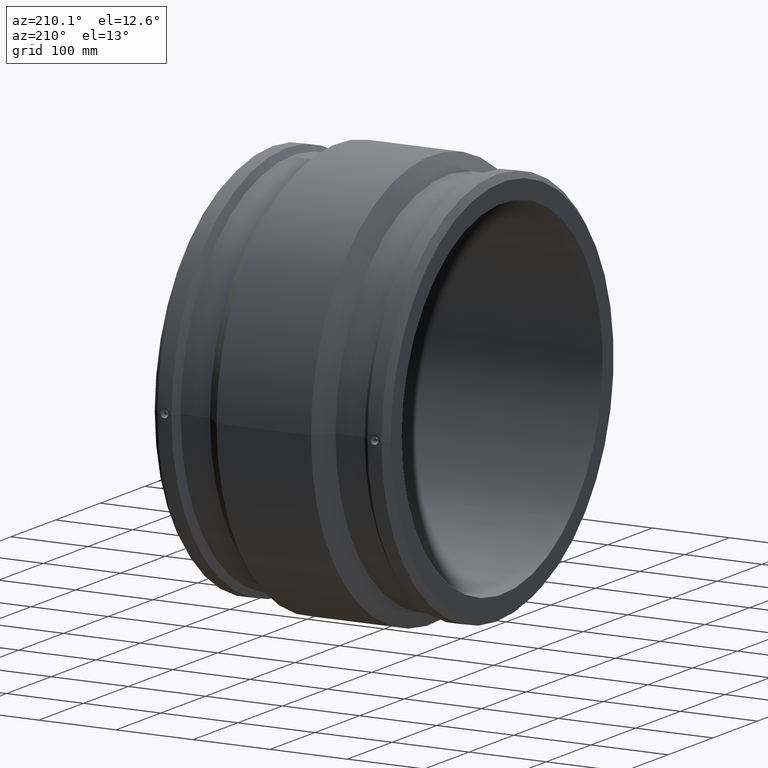
[diagram: clean part render]
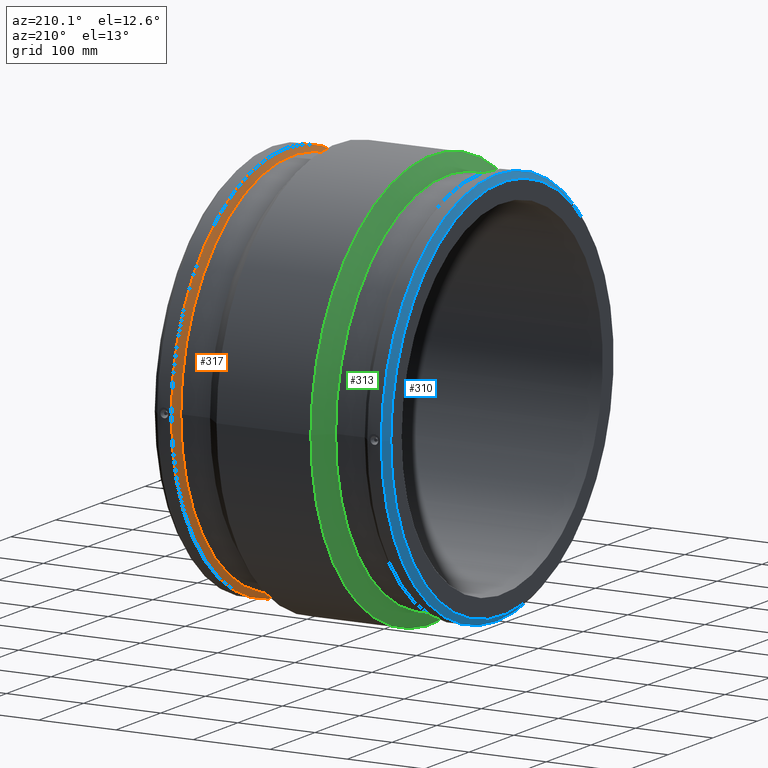
[diagram: same view with three faces highlighted in distinct colors, each labeled with its STEP entity id]
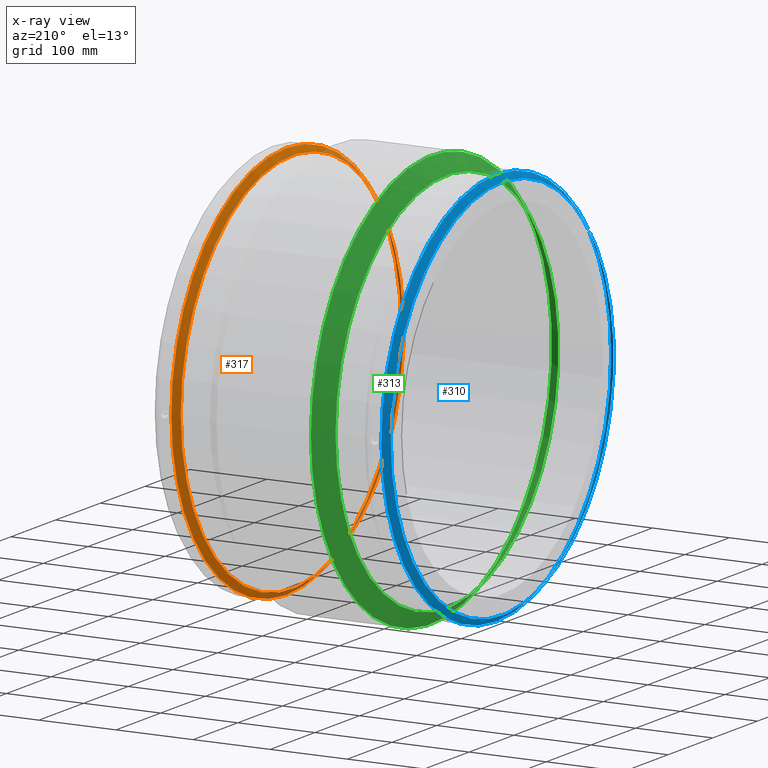
[diagram: x-ray of the same camera — body ghosted, the three highlighted faces saturated]
A machine part, auxiliary view with three faces highlighted in distinct colors.
The next image is the same camera in x-ray (body ghosted, the three faces saturated) — at least one of them is partly hidden behind the body in this view.
Their STEP definitions:

[orange] entity #317 — the highlighted conical surface has half-angle 45 deg.
#19=CONICAL_SURFACE('',#371,253.145,45.);
#45=FACE_BOUND('',#136,.T.);
#87=FACE_OUTER_BOUND('',#135,.T.);
#135=EDGE_LOOP('',(#277));
#136=EDGE_LOOP('',(#278));
#152=CIRCLE('',#343,257.);
#166=CIRCLE('',#370,249.29);
#178=VERTEX_POINT('',#554);
#192=VERTEX_POINT('',#632);
#206=EDGE_CURVE('',#178,#178,#152,.T.);
#222=EDGE_CURVE('',#192,#192,#166,.T.);
#277=ORIENTED_EDGE('',*,*,#222,.T.);
#278=ORIENTED_EDGE('',*,*,#206,.F.);
#317=ADVANCED_FACE('',(#87,#45),#19,.T.);
#343=AXIS2_PLACEMENT_3D('',#555,#419,#420);
#370=AXIS2_PLACEMENT_3D('',#633,#473,#474);
#371=AXIS2_PLACEMENT_3D('',#634,#475,#476);
#419=DIRECTION('center_axis',(1.,1.83697019872103E-16,0.));
#420=DIRECTION('ref_axis',(0.,0.,-1.));
#473=DIRECTION('center_axis',(1.,1.83697019872103E-16,0.));
#474=DIRECTION('ref_axis',(0.,0.,-1.));
#475=DIRECTION('center_axis',(1.,1.83697019872103E-16,0.));
#476=DIRECTION('ref_axis',(-1.97372982155583E-16,1.,0.));
#554=CARTESIAN_POINT('',(127.05,257.,0.));
#555=CARTESIAN_POINT('Origin',(127.05,5.14443504151824E-14,0.));
#632=CARTESIAN_POINT('',(119.34,249.29,0.));
#633=CARTESIAN_POINT('Origin',(119.34,5.00280463919685E-14,0.));
#634=CARTESIAN_POINT('Origin',(123.195,5.07361984035755E-14,0.));

[blue] entity #310 — the highlighted conical surface has half-angle 45 deg.
#15=CONICAL_SURFACE('',#358,253.145,45.0000000000001);
#38=FACE_BOUND('',#122,.T.);
#80=FACE_OUTER_BOUND('',#121,.T.);
#121=EDGE_LOOP('',(#263));
#122=EDGE_LOOP('',(#264));
#157=CIRCLE('',#353,257.);
#159=CIRCLE('',#356,249.29);
#183=VERTEX_POINT('',#606);
#185=VERTEX_POINT('',#611);
#213=EDGE_CURVE('',#183,#183,#157,.T.);
#215=EDGE_CURVE('',#185,#185,#159,.T.);
#263=ORIENTED_EDGE('',*,*,#215,.T.);
#264=ORIENTED_EDGE('',*,*,#213,.F.);
#310=ADVANCED_FACE('',(#80,#38),#15,.T.);
#353=AXIS2_PLACEMENT_3D('',#607,#439,#440);
#356=AXIS2_PLACEMENT_3D('',#612,#445,#446);
#358=AXIS2_PLACEMENT_3D('',#615,#449,#450);
#439=DIRECTION('center_axis',(1.,1.83697019872103E-16,0.));
#440=DIRECTION('ref_axis',(0.,0.,-1.));
#445=DIRECTION('center_axis',(1.,1.83697019872103E-16,0.));
#446=DIRECTION('ref_axis',(0.,0.,-1.));
#449=DIRECTION('center_axis',(1.,1.83697019872103E-16,0.));
#450=DIRECTION('ref_axis',(-1.97372982155583E-16,1.,0.));
#606=CARTESIAN_POINT('',(-145.29,257.,0.));
#607=CARTESIAN_POINT('Origin',(-145.29,1.41630402321392E-15,0.));
#611=CARTESIAN_POINT('',(-153.,249.29,0.));
#612=CARTESIAN_POINT('Origin',(-153.,9.86076131526265E-30,0.));
#615=CARTESIAN_POINT('Origin',(-149.145,7.08152011606965E-16,0.));

[green] entity #313 — the highlighted conical surface has half-angle 45 deg.
#17=CONICAL_SURFACE('',#363,259.395,45.);
#41=FACE_BOUND('',#128,.T.);
#83=FACE_OUTER_BOUND('',#127,.T.);
#127=EDGE_LOOP('',(#269));
#128=EDGE_LOOP('',(#270));
#162=CIRCLE('',#362,249.29);
#163=CIRCLE('',#364,269.5);
#188=VERTEX_POINT('',#620);
#189=VERTEX_POINT('',#623);
#218=EDGE_CURVE('',#188,#188,#162,.T.);
#219=EDGE_CURVE('',#189,#189,#163,.T.);
#269=ORIENTED_EDGE('',*,*,#218,.T.);
#270=ORIENTED_EDGE('',*,*,#219,.F.);
#313=ADVANCED_FACE('',(#83,#41),#17,.T.);
#362=AXIS2_PLACEMENT_3D('',#621,#457,#458);
#363=AXIS2_PLACEMENT_3D('',#622,#459,#460);
#364=AXIS2_PLACEMENT_3D('',#624,#461,#462);
#457=DIRECTION('center_axis',(1.,1.83697019872103E-16,0.));
#458=DIRECTION('ref_axis',(0.,0.,-1.));
#459=DIRECTION('center_axis',(1.,1.83697019872103E-16,0.));
#460=DIRECTION('ref_axis',(-1.97372982155583E-16,1.,0.));
#461=DIRECTION('center_axis',(1.,1.83697019872103E-16,0.));
#462=DIRECTION('ref_axis',(0.,0.,-1.));
#620=CARTESIAN_POINT('',(-81.4100000000001,249.29,0.));
#621=CARTESIAN_POINT('Origin',(-81.41,1.31508696526439E-14,0.));
#622=CARTESIAN_POINT('Origin',(-71.305,1.50071280384515E-14,0.));
#623=CARTESIAN_POINT('',(-61.2000000000001,269.5,0.));
#624=CARTESIAN_POINT('Origin',(-61.2,1.68633864242591E-14,0.));